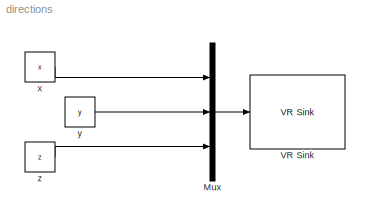
MODEL directions
KIND model
BLOCK [Mux] Mux
  DisplayOption = bar
  Inputs = 3
  Ports = [3, 1]
  SID = 14
BLOCK [Reference] VR Sink  REF=vrlib/VR Sink
  AutoView = on
  FieldsWritten = Falter.translation.3.1.1.double
  FigureProperties = {'Position', 'Name', 'Viewpoint', 'CameraBound', 'CameraDirection', 'CameraPosition', 'CameraUpVector', 'ZoomFactor', 'Antialiasing', 'Headlight', 'Lighting', 'NavPanel', 'StatusBar', 'ToolBar', 'Textures', 'Transparency', 'Wireframe', 'NavZones', 'NavMode', 'NavSpeed', 'Record2DCompressMethod', 'Record2DCompressQuality', 'Record2D', 'Record2DFileName', 'Record2DFPS'; [8.0000000000000000e+00   1.1...<+514ch>
  InstantiateOnLoad = on
  Ports = [1]
  RemoteChange = off
  RemoteView = off
  SID = 1
  SampleTime = 0.1
  SourceBlock = vrlib/VR Sink
  SourceType = Virtual Reality Sink
  VideoDimensions = []
  ViewEnable = on
  WorldFileName = home/falter/Desktop/MatLabTests/Er bewegt sich/room.wrl
BLOCK [Constant] x
  OutDataType = fixdt(1, 16)
  OutScaling = 2^0
  SID = 5
  Value = x
BLOCK [Constant] y
  OutDataType = fixdt(1, 16)
  OutScaling = 2^0
  SID = 9
  Value = y
BLOCK [Constant] z
  OutDataType = fixdt(1, 16)
  OutScaling = 2^0
  SID = 10
  Value = z
LINE Mux:1 -> VR Sink:1
LINE x:1 -> Mux:1
LINE y:1 -> Mux:2
LINE z:1 -> Mux:3
